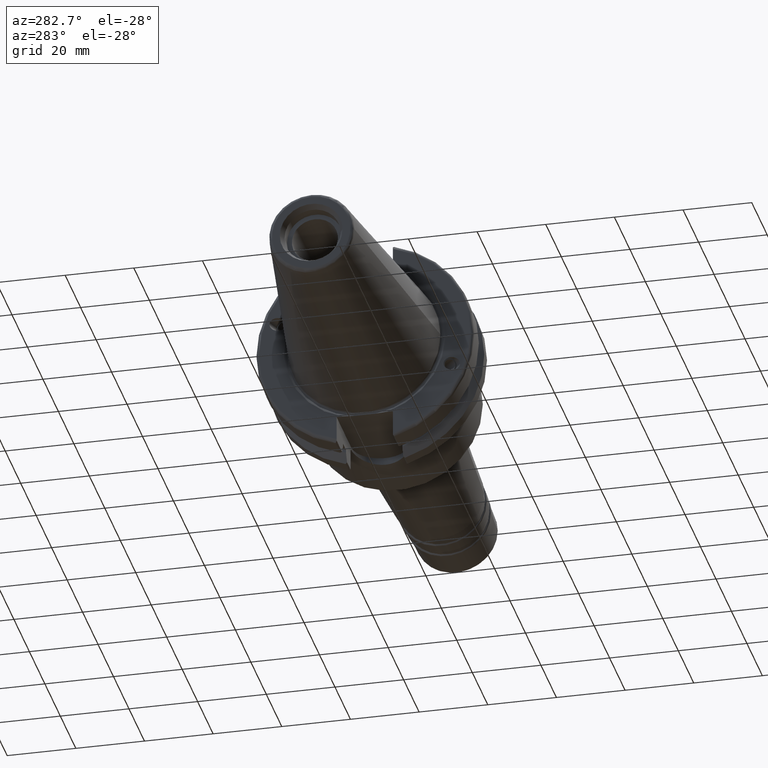
[diagram: clean part render]
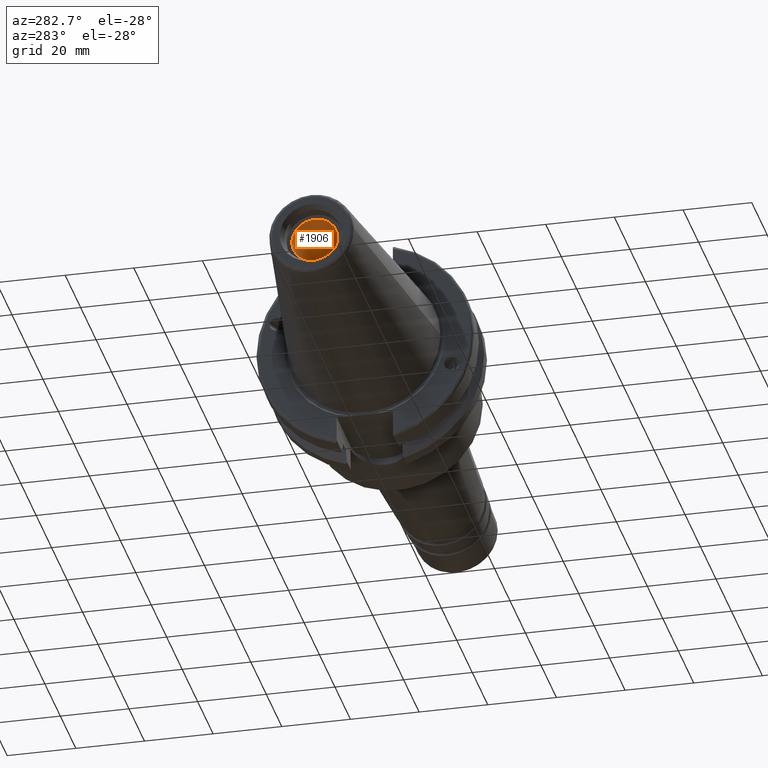
[diagram: same view with one face highlighted and labeled with its STEP entity id]
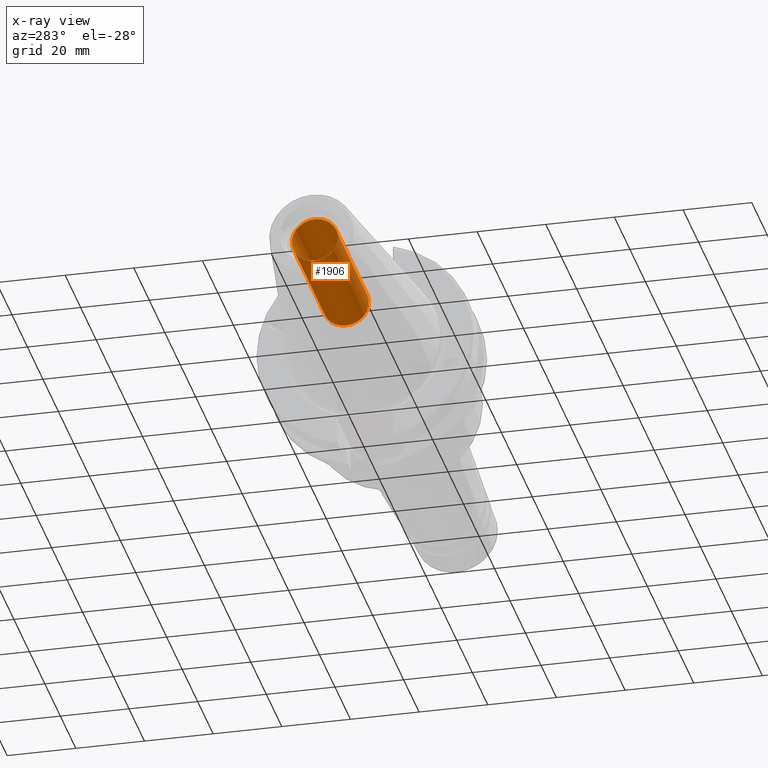
[diagram: x-ray of the same camera — body ghosted, the highlighted face saturated]
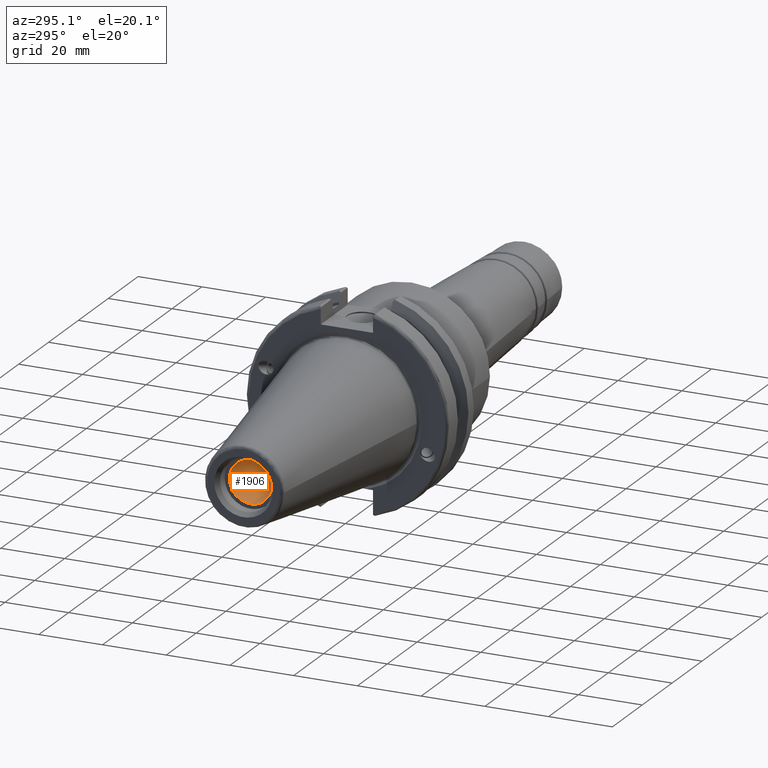
[diagram: same view with one face highlighted and labeled with its STEP entity id]
A machine part, auxiliary view. The second image highlights one B-rep face of the part: STEP entity #1906.
The next image is the same camera in x-ray: the body ghosted, the highlighted face saturated — about 1% of this face is hidden behind the body in this view.
A second angle (auxiliary view) of the same face is appended — the face is thin or edge-on in the first view.
In plain terms, the highlighted cylindrical surface (bore or boss wall) has radius 6.6929 mm, axis along (-1, 0, 0).
Its self-contained STEP definition (entity closure, byte-faithful):
#72=CYLINDRICAL_SURFACE('',#2152,6.6929);
#221=LINE('',#3509,#316);
#316=VECTOR('',#2644,6.6929);
#445=FACE_OUTER_BOUND('',#562,.T.);
#562=EDGE_LOOP('',(#1579,#1580,#1581,#1582));
#709=CIRCLE('',#2151,6.6929);
#710=CIRCLE('',#2153,6.6929);
#879=VERTEX_POINT('',#3503);
#880=VERTEX_POINT('',#3507);
#1131=EDGE_CURVE('',#879,#879,#709,.T.);
#1133=EDGE_CURVE('',#880,#880,#710,.T.);
#1134=EDGE_CURVE('',#880,#879,#221,.T.);
#1579=ORIENTED_EDGE('',*,*,#1133,.F.);
#1580=ORIENTED_EDGE('',*,*,#1134,.T.);
#1581=ORIENTED_EDGE('',*,*,#1131,.F.);
#1582=ORIENTED_EDGE('',*,*,#1134,.F.);
#1906=ADVANCED_FACE('',(#445),#72,.F.);
#2151=AXIS2_PLACEMENT_3D('',#3504,#2637,#2638);
#2152=AXIS2_PLACEMENT_3D('',#3506,#2640,#2641);
#2153=AXIS2_PLACEMENT_3D('',#3508,#2642,#2643);
#2637=DIRECTION('center_axis',(-1.,0.,0.));
#2638=DIRECTION('ref_axis',(0.,0.,1.));
#2640=DIRECTION('center_axis',(-1.,0.,0.));
#2641=DIRECTION('ref_axis',(0.,0.,1.));
#2642=DIRECTION('center_axis',(1.,0.,0.));
#2643=DIRECTION('ref_axis',(0.,0.,1.));
#2644=DIRECTION('',(1.,0.,0.));
#3503=CARTESIAN_POINT('',(-23.25,-8.19643856201332E-16,-6.6929));
#3504=CARTESIAN_POINT('Origin',(-23.25,0.,0.));
#3506=CARTESIAN_POINT('Origin',(-45.75,0.,0.));
#3507=CARTESIAN_POINT('',(-63.45,8.19643856201332E-16,-6.6929));
#3508=CARTESIAN_POINT('Origin',(-63.45,0.,0.));
#3509=CARTESIAN_POINT('',(-45.75,-8.19643856201332E-16,-6.6929));